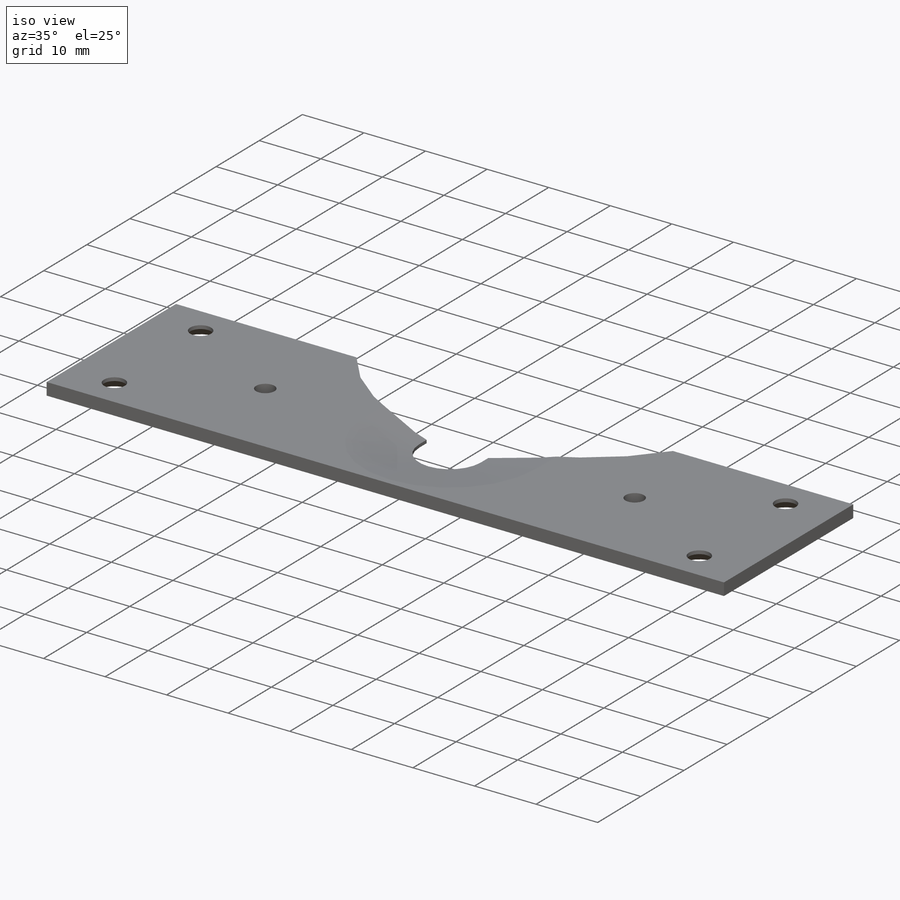
[diagram: iso view]
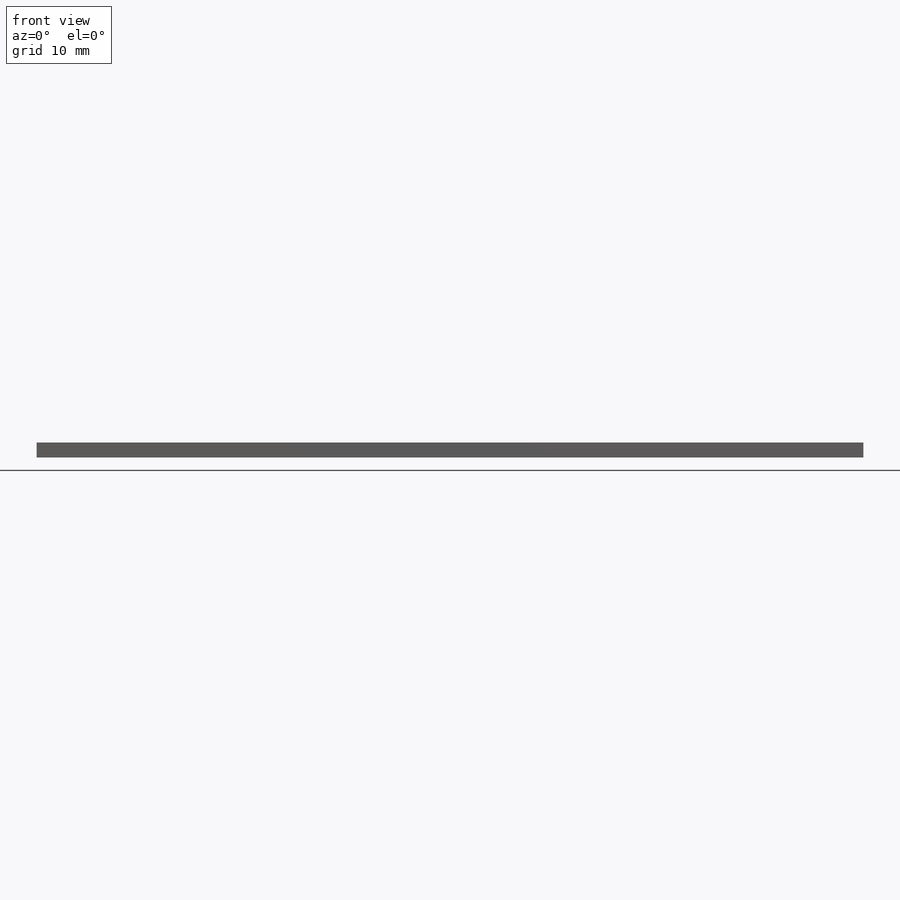
[diagram: front view]
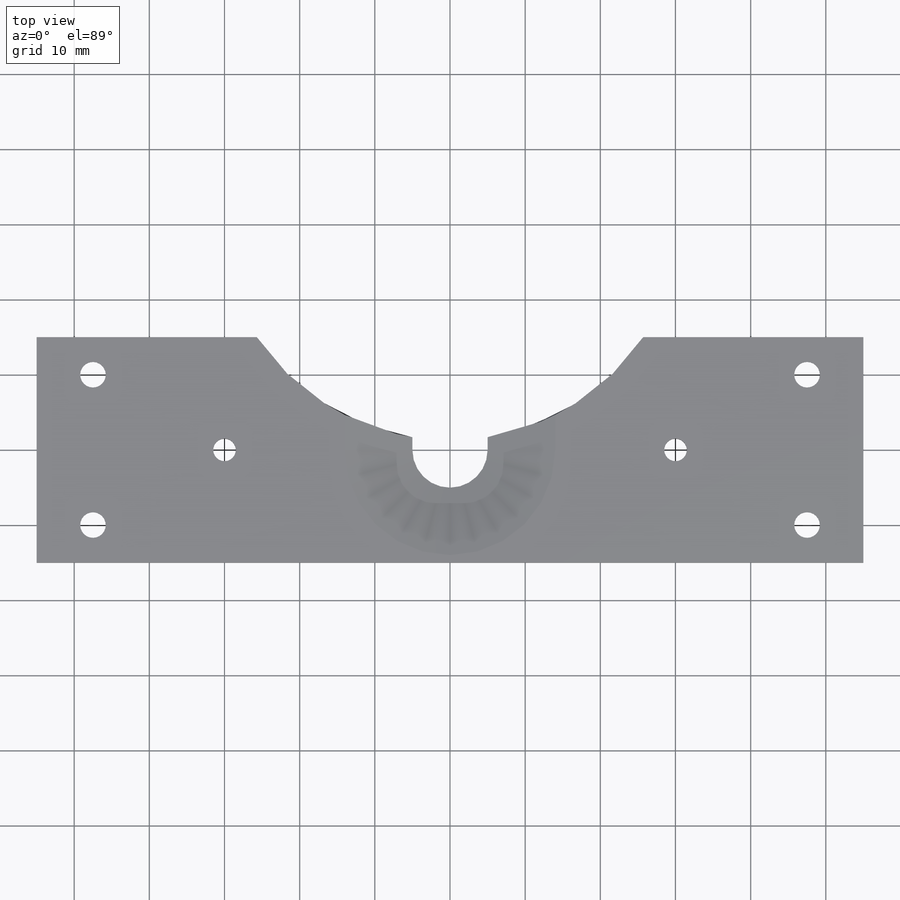
[diagram: top view]
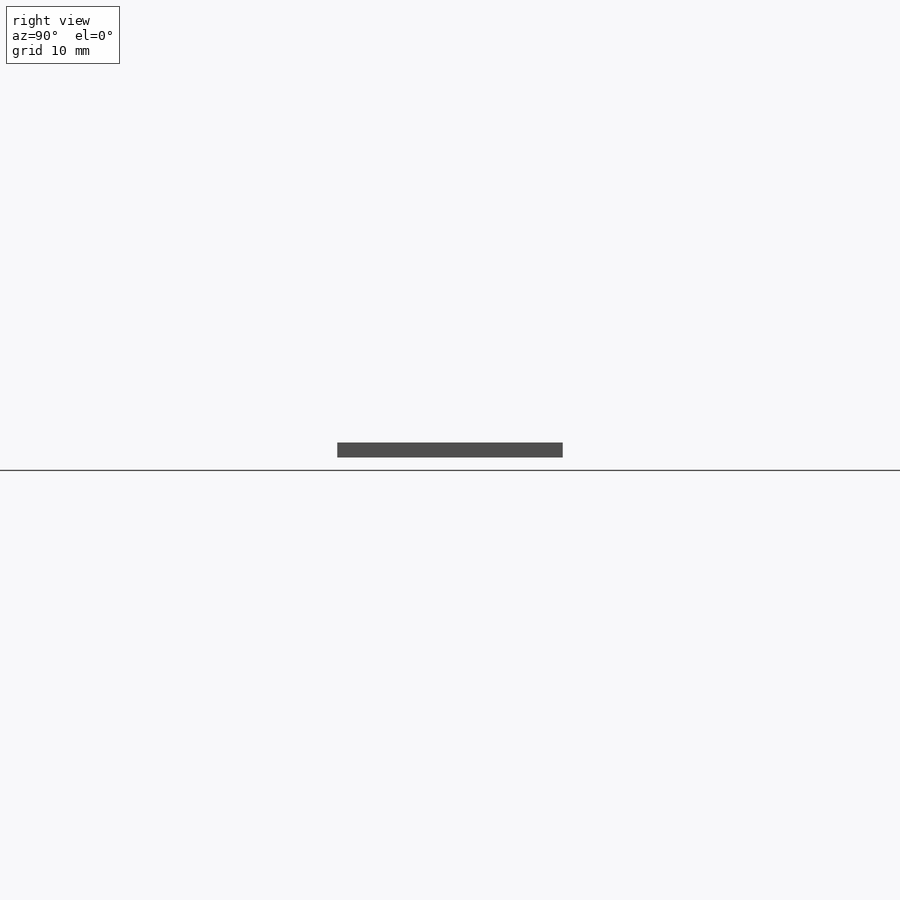
[diagram: right view]
SOLIDWORKS PART (.sldprt)
format: sldprt  version: not decoded by parser v0  size: 229,888 bytes
history: native  units: mm
features: sketch x7, cut_extrude x2, hole x2, material x1, extrude x1, chamfer x1 (+11 scaffold rows collapsed)
feature tree (25):
  scaffold x11  (default folders/planes/origin — collapsed)
  material  "Material <not specified>"
  sketch  "Sketch1"  dims[c1.D5=10.0mm c1.D3=5.0mm c1.D1=55.0mm c1.D2=55.0mm c2.D3=15.0mm c2.D4=15.0mm c2.D5=15.0mm]
  extrude  "Extrude1"  Depth=2mm
  sketch  "Sketch2"  dims[D1=~9.944821mm]
  cut_extrude  "Cut-Extrude1"  [1 undecoded]
  chamfer  "Chamfer1"  Distance=9mm
  hole  "CSK for M3 Countersunk Raised Head Screw1"  Diameter=3.4mm Depth=2mm
  sketch  "Sketch9"  dims[D1=7.5mm D2=7.5mm D3=5.0mm D4=5.0mm]
  sketch  "Sketch8"  dims[hole-wizard template sketch: 59 standard entries collapsed; hole parameters above]
  hole  "M3 Tapped Hole1"  Diameter=3mm Depth=2mm
  sketch  "Sketch11"  dims[D1=15.0mm D2=25.0mm D3=25.0mm]
  sketch  "Sketch12"  dims[hole-wizard template sketch: 60 standard entries collapsed; hole parameters kept: c18.Thru Tap Drill Depth=2.0mm]
  sketch  "Sketch13"  dims[D1=~29.285686mm D2=~29.235062mm]
  cut_extrude  "Cut-Extrude2"  [1 undecoded]
decode coverage: 11 of 13 modeling features carry decoded parameters
note: ~ marks probable driven/reference dimensions
note: 2 parameter values undecoded
note: suppression state not decoded; provenance and decode notes live in map.json
